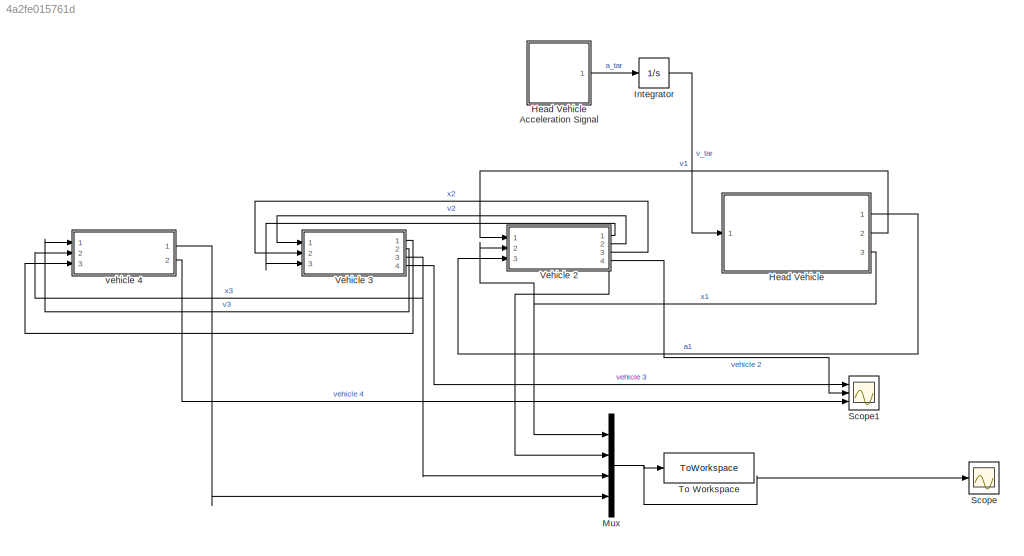
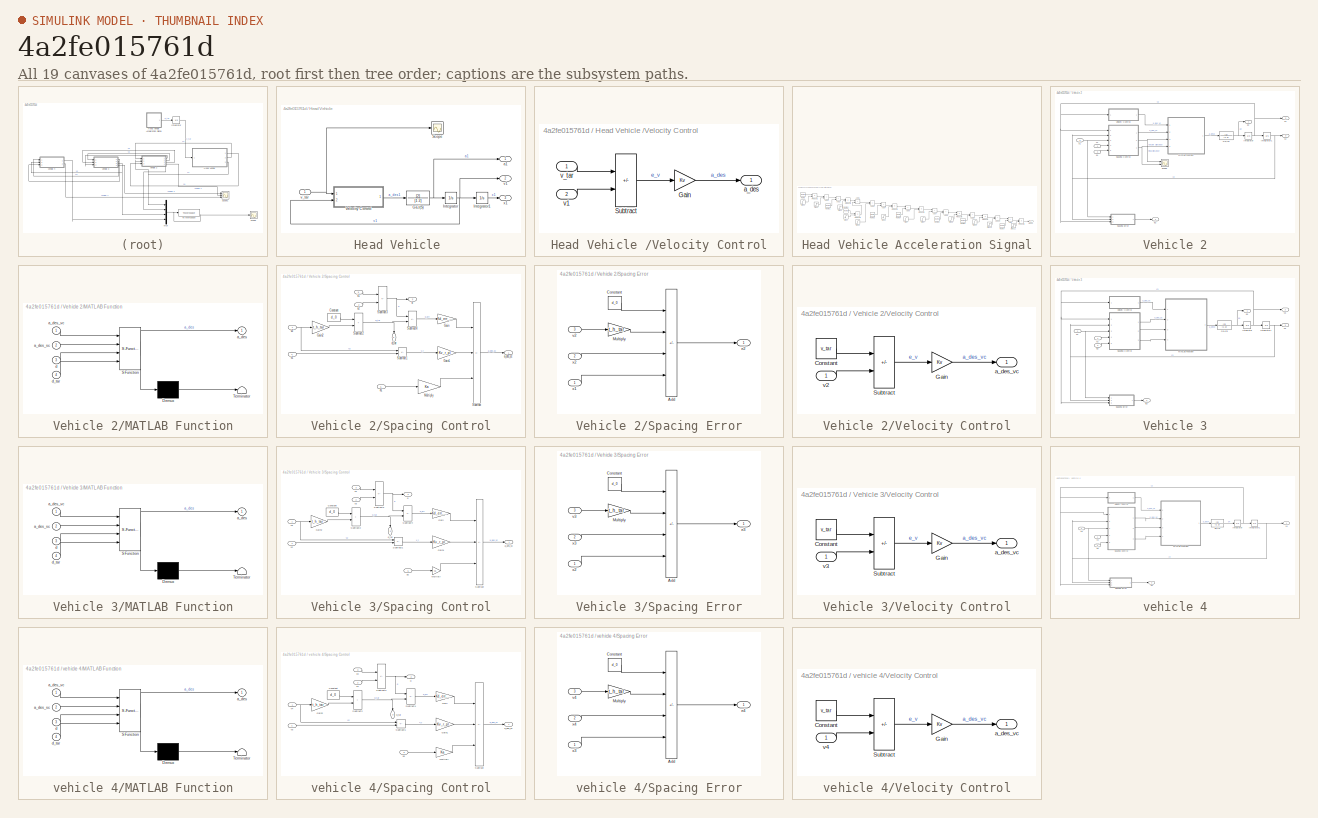
[diagram: thumbnail index - all 19 canvases of the model, root first then tree order]
MODEL slx_4a2fe015761d
KIND model
CONFIG AbsTol = auto
CONFIG EnableMultiTasking = off
CONFIG FixedStep = auto
CONFIG MaxStep = auto
CONFIG MinStep = auto
CONFIG RelTol = 1e-3
CONFIG SampleTimeConstraint = Unconstrained
CONFIG SolverName = VariableStepAuto
CONFIG StartTime = 0.0
CONFIG StopTime = 120
BLOCK [SubSystem] Head Vehicle 
  Ports = [1, 3]
  RequestExecContextInheritance = off
BLOCK [TransferFcn] Head Vehicle /Ga,l(S)
  Denominator = [1 2]
  Numerator = [2]
BLOCK [Integrator] Head Vehicle /Integrator
  InitialCondition = v_initial(1)
  Ports = [1, 1]
BLOCK [Integrator] Head Vehicle /Integrator1
  InitialCondition = x_initial(1)
  Ports = [1, 1]
BLOCK [Scope] Head Vehicle /Scope
  Floating = off
  NumInputPorts = 1
  Ports = [1]
  ScopeSpecificationString = Simulink.scopes.TimeScopeBlockCfg('CurrentConfiguration', extmgr.ConfigurationSet(extmgr.Configuration('Core','General UI',true),extmgr.Configuration('Core','Source UI',true),extmgr.Configuration('Sources','WiredSimulink',true,'DataLoggingVariableName','ScopeData1'),extmgr.Configuration('Visuals','Time Domain',true,'SerializedDisplays',{struct('MinYLimReal','-7.875','MaxYLimReal','0.875','YLabelRe...<+1352ch>
BLOCK [SubSystem] Head Vehicle /Velocity Control
  Ports = [2, 1]
  RequestExecContextInheritance = off
BLOCK [Gain] Head Vehicle /Velocity Control/Gain
  Gain = Kv
BLOCK [Sum] Head Vehicle /Velocity Control/Subtract
  IconShape = rectangular
  Inputs = +-
  Ports = [2, 1]
BLOCK [Outport] Head Vehicle /Velocity Control/a_des
BLOCK [Inport] Head Vehicle /Velocity Control/v1
  Port = 2
BLOCK [Inport] Head Vehicle /Velocity Control/v_tar
BLOCK [Outport] Head Vehicle /a1
BLOCK [Outport] Head Vehicle /v1
  Port = 2
BLOCK [Inport] Head Vehicle /v_tar
BLOCK [Outport] Head Vehicle /x1
  Port = 3
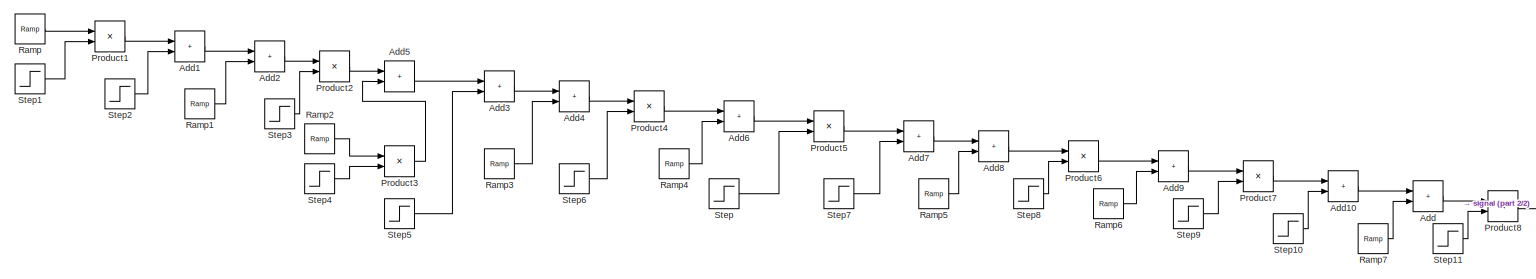
[diagram: Head Vehicle Acceleration Signal - part 1/2, most of the canvas]
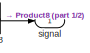
[diagram: Head Vehicle Acceleration Signal - part 2/2, bottom right region]
BLOCK [SubSystem] Head Vehicle Acceleration Signal
  Ports = [0, 1]
  RequestExecContextInheritance = off
BLOCK [Sum] Head Vehicle Acceleration Signal/Add
  IconShape = rectangular
  Ports = [2, 1]
BLOCK [Sum] Head Vehicle Acceleration Signal/Add1
  IconShape = rectangular
  Ports = [2, 1]
BLOCK [Sum] Head Vehicle Acceleration Signal/Add10
  IconShape = rectangular
  Ports = [2, 1]
BLOCK [Sum] Head Vehicle Acceleration Signal/Add2
  IconShape = rectangular
  Ports = [2, 1]
BLOCK [Sum] Head Vehicle Acceleration Signal/Add3
  IconShape = rectangular
  Ports = [2, 1]
BLOCK [Sum] Head Vehicle Acceleration Signal/Add4
  IconShape = rectangular
  Ports = [2, 1]
BLOCK [Sum] Head Vehicle Acceleration Signal/Add5
  IconShape = rectangular
  Ports = [2, 1]
BLOCK [Sum] Head Vehicle Acceleration Signal/Add6
  IconShape = rectangular
  Ports = [2, 1]
BLOCK [Sum] Head Vehicle Acceleration Signal/Add7
  IconShape = rectangular
  Ports = [2, 1]
BLOCK [Sum] Head Vehicle Acceleration Signal/Add8
  IconShape = rectangular
  Ports = [2, 1]
BLOCK [Sum] Head Vehicle Acceleration Signal/Add9
  IconShape = rectangular
  Ports = [2, 1]
BLOCK [Product] Head Vehicle Acceleration Signal/Product1
  Ports = [2, 1]
BLOCK [Product] Head Vehicle Acceleration Signal/Product2
  Ports = [2, 1]
BLOCK [Product] Head Vehicle Acceleration Signal/Product3
  Ports = [2, 1]
BLOCK [Product] Head Vehicle Acceleration Signal/Product4
  Ports = [2, 1]
BLOCK [Product] Head Vehicle Acceleration Signal/Product5
  Ports = [2, 1]
BLOCK [Product] Head Vehicle Acceleration Signal/Product6
  Ports = [2, 1]
BLOCK [Product] Head Vehicle Acceleration Signal/Product7
  Ports = [2, 1]
BLOCK [Product] Head Vehicle Acceleration Signal/Product8
  Ports = [2, 1]
BLOCK [Reference] Head Vehicle Acceleration Signal/Ramp  REF=simulink/Sources/Ramp
  Ports = [0, 1]
  SourceBlock = simulink/Sources/Ramp
  SourceProductBaseCode = SL
  SourceType = Ramp
BLOCK [Reference] Head Vehicle Acceleration Signal/Ramp1  REF=simulink/Sources/Ramp
  Ports = [0, 1]
  SourceBlock = simulink/Sources/Ramp
  SourceProductBaseCode = SL
  SourceType = Ramp
BLOCK [Reference] Head Vehicle Acceleration Signal/Ramp2  REF=simulink/Sources/Ramp
  Ports = [0, 1]
  SourceBlock = simulink/Sources/Ramp
  SourceProductBaseCode = SL
  SourceType = Ramp
BLOCK [Reference] Head Vehicle Acceleration Signal/Ramp3  REF=simulink/Sources/Ramp
  Ports = [0, 1]
  SourceBlock = simulink/Sources/Ramp
  SourceProductBaseCode = SL
  SourceType = Ramp
BLOCK [Reference] Head Vehicle Acceleration Signal/Ramp4  REF=simulink/Sources/Ramp
  Ports = [0, 1]
  SourceBlock = simulink/Sources/Ramp
  SourceProductBaseCode = SL
  SourceType = Ramp
BLOCK [Reference] Head Vehicle Acceleration Signal/Ramp5  REF=simulink/Sources/Ramp
  Ports = [0, 1]
  SourceBlock = simulink/Sources/Ramp
  SourceProductBaseCode = SL
  SourceType = Ramp
BLOCK [Reference] Head Vehicle Acceleration Signal/Ramp6  REF=simulink/Sources/Ramp
  Ports = [0, 1]
  SourceBlock = simulink/Sources/Ramp
  SourceProductBaseCode = SL
  SourceType = Ramp
BLOCK [Reference] Head Vehicle Acceleration Signal/Ramp7  REF=simulink/Sources/Ramp
  Ports = [0, 1]
  SourceBlock = simulink/Sources/Ramp
  SourceProductBaseCode = SL
  SourceType = Ramp
BLOCK [Step] Head Vehicle Acceleration Signal/Step
  After = 0
  Before = 1
  SampleTime = 0
  Time = 70.5
BLOCK [Step] Head Vehicle Acceleration Signal/Step1
  After = 0
  Before = 1
  SampleTime = 0.1
  Time = 10.5
BLOCK [Step] Head Vehicle Acceleration Signal/Step10
  After = 2
  SampleTime = 0
  Time = 100.5
BLOCK [Step] Head Vehicle Acceleration Signal/Step11
  After = 0
  Before = 1
  SampleTime = 0
  Time = 104
BLOCK [Step] Head Vehicle Acceleration Signal/Step2
  After = -2
  SampleTime = 0
  Time = 10.5
BLOCK [Step] Head Vehicle Acceleration Signal/Step3
  After = 0
  Before = 1
  SampleTime = 0
  Time = 14
BLOCK [Step] Head Vehicle Acceleration Signal/Step4
  After = 0
  Before = 1
  SampleTime = 0
  Time = 40.5
BLOCK [Step] Head Vehicle Acceleration Signal/Step5
  After = 2
  SampleTime = 0
  Time = 40.5
BLOCK [Step] Head Vehicle Acceleration Signal/Step6
  After = 0
  Before = 1
  SampleTime = 0
  Time = 44
BLOCK [Step] Head Vehicle Acceleration Signal/Step7
  After = -2
  SampleTime = 0
  Time = 70.5
BLOCK [Step] Head Vehicle Acceleration Signal/Step8
  After = 0
  Before = 1
  SampleTime = 0
  Time = 74
BLOCK [Step] Head Vehicle Acceleration Signal/Step9
  After = 0
  Before = 1
  SampleTime = 0
  Time = 100.5
BLOCK [Outport] Head Vehicle Acceleration Signal/signal
BLOCK [Integrator] Integrator
  InitialCondition = v_initial(1)
  Ports = [1, 1]
BLOCK [Mux] Mux
  DisplayOption = bar
  Ports = [4, 1]
BLOCK [Scope] Scope
  Floating = off
  NumInputPorts = 1
  Ports = [1]
  ScopeSpecificationString = Simulink.scopes.TimeScopeBlockCfg('CurrentConfiguration', extmgr.ConfigurationSet(extmgr.Configuration('Core','General UI',true),extmgr.Configuration('Core','Source UI',true),extmgr.Configuration('Sources','WiredSimulink',true,'DataLoggingVariableName','ScopeData1'),extmgr.Configuration('Visuals','Time Domain',true,'SerializedDisplays',{struct('MinYLimReal','-416.25','MaxYLimReal','3746.25','YLabe...<+1415ch>
BLOCK [Scope] Scope1
  Floating = off
  NumInputPorts = 3
  Ports = [3]
  ScopeSpecificationString = Simulink.scopes.TimeScopeBlockCfg('CurrentConfiguration', extmgr.ConfigurationSet(extmgr.Configuration('Core','General UI',true),extmgr.Configuration('Core','Source UI',true),extmgr.Configuration('Sources','WiredSimulink',true,'DataLoggingVariableName','ScopeData1'),extmgr.Configuration('Visuals','Time Domain',true,'SerializedDisplays',{struct('MinYLimReal','0.20051','MaxYLimReal','0.5639','YLabel...<+1507ch>
BLOCK [ToWorkspace] To Workspace
  FixptAsFi = on
  MaxDataPoints = inf
  Ports = [1]
  SampleTime = -1
  VariableName = x_plus
BLOCK [SubSystem] Vehicle 2
  Ports = [3, 4]
  RequestExecContextInheritance = off
BLOCK [TransferFcn] Vehicle 2/Ga,l(S)
  Denominator = [1 2]
  Numerator = [2]
BLOCK [Integrator] Vehicle 2/Integrator
  InitialCondition = v_initial(2)
  Ports = [1, 1]
BLOCK [Integrator] Vehicle 2/Integrator1
  InitialCondition = x_initial(2)
  Ports = [1, 1]
BLOCK [SubSystem] Vehicle 2/MATLAB Function
  ErrorFcn = Stateflow.Translate.translate
  PermitHierarchicalResolution = ExplicitOnly
  Ports = [4, 1]
  RequestExecContextInheritance = off
  SFBlockType = MATLAB Function
  TreatAsAtomicUnit = on
BLOCK [Demux] Vehicle 2/MATLAB Function/ Demux 
  Outputs = 1
  Ports = [1, 1]
BLOCK [S-Function] Vehicle 2/MATLAB Function/ SFunction 
  EnableBusSupport = on
  FunctionName = sf_sfun
  PortCounts = [4 2]
  Ports = [4, 2]
  SFcnIsStateOwnerBlock = off
  SFunctionDeploymentMode = off
  Tag = Stateflow S-Function 1
BLOCK [Terminator] Vehicle 2/MATLAB Function/ Terminator 
BLOCK [Outport] Vehicle 2/MATLAB Function/a_des
BLOCK [Inport] Vehicle 2/MATLAB Function/a_des_sc
  Port = 2
BLOCK [Inport] Vehicle 2/MATLAB Function/a_des_vc
BLOCK [Inport] Vehicle 2/MATLAB Function/d
  Port = 3
BLOCK [Inport] Vehicle 2/MATLAB Function/d_tar
  Port = 4
BLOCK [Scope] Vehicle 2/Scope
  Floating = off
  NumInputPorts = 2
  Ports = [2]
  ScopeSpecificationString = Simulink.scopes.TimeScopeBlockCfg('CurrentConfiguration', extmgr.ConfigurationSet(extmgr.Configuration('Core','General UI',true),extmgr.Configuration('Core','Source UI',true),extmgr.Configuration('Sources','WiredSimulink',true,'DataLoggingVariableName','ScopeData1'),extmgr.Configuration('Visuals','Time Domain',true,'SerializedDisplays',{struct('MinYLimReal','27.17608','MaxYLimReal','63.64472','YLa...<+1500ch>
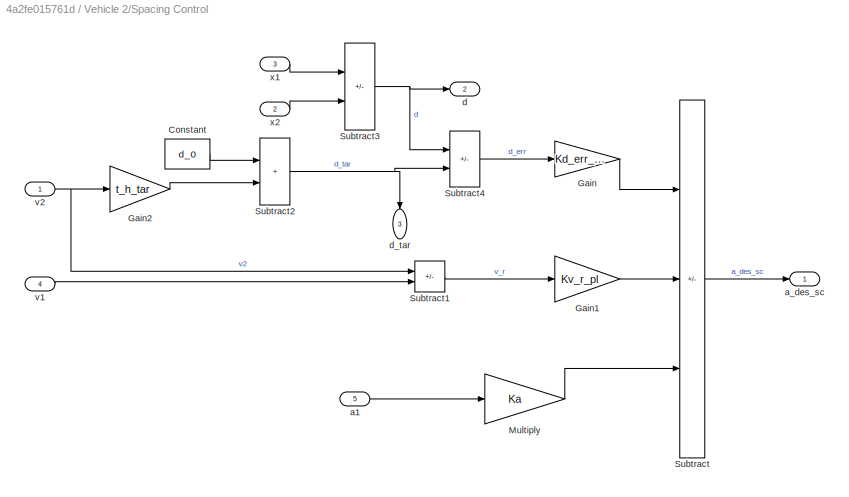
BLOCK [SubSystem] Vehicle 2/Spacing Control
  Ports = [5, 3]
  RequestExecContextInheritance = off
BLOCK [Constant] Vehicle 2/Spacing Control/Constant
  Value = d_0
BLOCK [Gain] Vehicle 2/Spacing Control/Gain
  Gain = Kd_err_pl
BLOCK [Gain] Vehicle 2/Spacing Control/Gain1
  Gain = Kv_r_pl
BLOCK [Gain] Vehicle 2/Spacing Control/Gain2
  Gain = t_h_tar
BLOCK [Gain] Vehicle 2/Spacing Control/Multiply
  Gain = Ka
BLOCK [Sum] Vehicle 2/Spacing Control/Subtract
  IconShape = rectangular
  Inputs = -++
  Ports = [3, 1]
BLOCK [Sum] Vehicle 2/Spacing Control/Subtract1
  IconShape = rectangular
  Inputs = -+
  Ports = [2, 1]
BLOCK [Sum] Vehicle 2/Spacing Control/Subtract2
  IconShape = rectangular
  Ports = [2, 1]
BLOCK [Sum] Vehicle 2/Spacing Control/Subtract3
  IconShape = rectangular
  Inputs = +-
  Ports = [2, 1]
BLOCK [Sum] Vehicle 2/Spacing Control/Subtract4
  IconShape = rectangular
  Inputs = -+
  Ports = [2, 1]
BLOCK [Inport] Vehicle 2/Spacing Control/a1
  Port = 5
BLOCK [Outport] Vehicle 2/Spacing Control/a_des_sc
BLOCK [Outport] Vehicle 2/Spacing Control/d
  Port = 2
BLOCK [Outport] Vehicle 2/Spacing Control/d_tar
  NameLocation = left
  Port = 3
BLOCK [Inport] Vehicle 2/Spacing Control/v1
  Port = 4
BLOCK [Inport] Vehicle 2/Spacing Control/v2
BLOCK [Inport] Vehicle 2/Spacing Control/x1
  Port = 3
BLOCK [Inport] Vehicle 2/Spacing Control/x2
  Port = 2
BLOCK [SubSystem] Vehicle 2/Spacing Error
  Ports = [3, 1]
  RequestExecContextInheritance = off
BLOCK [Sum] Vehicle 2/Spacing Error/Add
  IconShape = rectangular
  Inputs = +++-
  Ports = [4, 1]
BLOCK [Constant] Vehicle 2/Spacing Error/Constant
  Value = d_0
BLOCK [Gain] Vehicle 2/Spacing Error/Multiply
  Gain = t_h_tar
BLOCK [Outport] Vehicle 2/Spacing Error/e2
BLOCK [Inport] Vehicle 2/Spacing Error/v2
  Port = 3
BLOCK [Inport] Vehicle 2/Spacing Error/x1
BLOCK [Inport] Vehicle 2/Spacing Error/x2
  Port = 2
BLOCK [SubSystem] Vehicle 2/Velocity Control
  Ports = [1, 1]
  RequestExecContextInheritance = off
BLOCK [Constant] Vehicle 2/Velocity Control/Constant
  Value = v_tar
BLOCK [Gain] Vehicle 2/Velocity Control/Gain
  Gain = Kv
BLOCK [Sum] Vehicle 2/Velocity Control/Subtract
  IconShape = rectangular
  Inputs = +-
  Ports = [2, 1]
BLOCK [Outport] Vehicle 2/Velocity Control/a_des_vc
BLOCK [Inport] Vehicle 2/Velocity Control/v2
BLOCK [Inport] Vehicle 2/a1
  Port = 3
BLOCK [Outport] Vehicle 2/a2
BLOCK [Outport] Vehicle 2/e2
  Port = 4
BLOCK [Inport] Vehicle 2/v1
BLOCK [Outport] Vehicle 2/v2
  Port = 2
BLOCK [Inport] Vehicle 2/x1
  Port = 2
BLOCK [Outport] Vehicle 2/x2
  Port = 3
BLOCK [SubSystem] Vehicle 3
  Ports = [3, 4]
  RequestExecContextInheritance = off
BLOCK [TransferFcn] Vehicle 3/Ga,l(S)
  Denominator = [1 2]
  Numerator = [2]
BLOCK [Integrator] Vehicle 3/Integrator
  InitialCondition = v_initial(3)
  Ports = [1, 1]
BLOCK [Integrator] Vehicle 3/Integrator1
  InitialCondition = x_initial(3)
  Ports = [1, 1]
BLOCK [SubSystem] Vehicle 3/MATLAB Function
  ErrorFcn = Stateflow.Translate.translate
  PermitHierarchicalResolution = ExplicitOnly
  Ports = [4, 1]
  RequestExecContextInheritance = off
  SFBlockType = MATLAB Function
  TreatAsAtomicUnit = on
BLOCK [Demux] Vehicle 3/MATLAB Function/ Demux 
  Outputs = 1
  Ports = [1, 1]
BLOCK [S-Function] Vehicle 3/MATLAB Function/ SFunction 
  EnableBusSupport = on
  FunctionName = sf_sfun
  PortCounts = [4 2]
  Ports = [4, 2]
  SFcnIsStateOwnerBlock = off
  SFunctionDeploymentMode = off
  Tag = Stateflow S-Function 2
BLOCK [Terminator] Vehicle 3/MATLAB Function/ Terminator 
BLOCK [Outport] Vehicle 3/MATLAB Function/a_des
BLOCK [Inport] Vehicle 3/MATLAB Function/a_des_sc
  Port = 2
BLOCK [Inport] Vehicle 3/MATLAB Function/a_des_vc
BLOCK [Inport] Vehicle 3/MATLAB Function/d
  Port = 3
BLOCK [Inport] Vehicle 3/MATLAB Function/d_tar
  Port = 4
BLOCK [SubSystem] Vehicle 3/Spacing Control
  Ports = [5, 3]
  RequestExecContextInheritance = off
BLOCK [Constant] Vehicle 3/Spacing Control/Constant
  Value = d_0
BLOCK [Gain] Vehicle 3/Spacing Control/Gain
  Gain = Kd_err_pl
BLOCK [Gain] Vehicle 3/Spacing Control/Gain1
  Gain = Kv_r_pl
BLOCK [Gain] Vehicle 3/Spacing Control/Gain2
  Gain = t_h_tar
BLOCK [Gain] Vehicle 3/Spacing Control/Multiply
  Gain = Ka
BLOCK [Sum] Vehicle 3/Spacing Control/Subtract
  IconShape = rectangular
  Inputs = -++
  Ports = [3, 1]
BLOCK [Sum] Vehicle 3/Spacing Control/Subtract1
  IconShape = rectangular
  Inputs = -+
  Ports = [2, 1]
BLOCK [Sum] Vehicle 3/Spacing Control/Subtract2
  IconShape = rectangular
  Ports = [2, 1]
BLOCK [Sum] Vehicle 3/Spacing Control/Subtract3
  IconShape = rectangular
  Inputs = +-
  Ports = [2, 1]
BLOCK [Sum] Vehicle 3/Spacing Control/Subtract4
  IconShape = rectangular
  Inputs = -+
  Ports = [2, 1]
BLOCK [Inport] Vehicle 3/Spacing Control/a2
  Port = 5
BLOCK [Outport] Vehicle 3/Spacing Control/a_des_sc
BLOCK [Outport] Vehicle 3/Spacing Control/d
  Port = 2
BLOCK [Outport] Vehicle 3/Spacing Control/d_tar
  NameLocation = left
  Port = 3
BLOCK [Inport] Vehicle 3/Spacing Control/v2
  Port = 4
BLOCK [Inport] Vehicle 3/Spacing Control/v3
BLOCK [Inport] Vehicle 3/Spacing Control/x2
  Port = 3
BLOCK [Inport] Vehicle 3/Spacing Control/x3
  Port = 2
BLOCK [SubSystem] Vehicle 3/Spacing Error
  Ports = [3, 1]
  RequestExecContextInheritance = off
BLOCK [Sum] Vehicle 3/Spacing Error/Add
  IconShape = rectangular
  Inputs = +++-
  Ports = [4, 1]
BLOCK [Constant] Vehicle 3/Spacing Error/Constant
  Value = d_0
BLOCK [Gain] Vehicle 3/Spacing Error/Multiply
  Gain = t_h_tar
BLOCK [Outport] Vehicle 3/Spacing Error/e3
BLOCK [Inport] Vehicle 3/Spacing Error/v3
  Port = 3
BLOCK [Inport] Vehicle 3/Spacing Error/x2
BLOCK [Inport] Vehicle 3/Spacing Error/x3
  Port = 2
BLOCK [SubSystem] Vehicle 3/Velocity Control
  Ports = [1, 1]
  RequestExecContextInheritance = off
BLOCK [Constant] Vehicle 3/Velocity Control/Constant
  Value = v_tar
BLOCK [Gain] Vehicle 3/Velocity Control/Gain
  Gain = Kv
BLOCK [Sum] Vehicle 3/Velocity Control/Subtract
  IconShape = rectangular
  Inputs = +-
  Ports = [2, 1]
BLOCK [Outport] Vehicle 3/Velocity Control/a_des_vc
BLOCK [Inport] Vehicle 3/Velocity Control/v3
BLOCK [Inport] Vehicle 3/a2
  Port = 3
BLOCK [Outport] Vehicle 3/a3
BLOCK [Outport] Vehicle 3/e3
  Port = 4
BLOCK [Inport] Vehicle 3/v2
BLOCK [Outport] Vehicle 3/v3
  Port = 2
BLOCK [Inport] Vehicle 3/x2
  Port = 2
BLOCK [Outport] Vehicle 3/x3
  Port = 3
BLOCK [SubSystem] vehicle 4
  Ports = [3, 2]
  RequestExecContextInheritance = off
BLOCK [TransferFcn] vehicle 4/Ga,l(S)
  Denominator = [1 2]
  Numerator = [2]
BLOCK [Integrator] vehicle 4/Integrator
  InitialCondition = v_initial(4)
  Ports = [1, 1]
BLOCK [Integrator] vehicle 4/Integrator1
  InitialCondition = x_initial(4)
  Ports = [1, 1]
BLOCK [SubSystem] vehicle 4/MATLAB Function
  ErrorFcn = Stateflow.Translate.translate
  PermitHierarchicalResolution = ExplicitOnly
  Ports = [4, 1]
  RequestExecContextInheritance = off
  SFBlockType = MATLAB Function
  TreatAsAtomicUnit = on
BLOCK [Demux] vehicle 4/MATLAB Function/ Demux 
  Outputs = 1
  Ports = [1, 1]
BLOCK [S-Function] vehicle 4/MATLAB Function/ SFunction 
  EnableBusSupport = on
  FunctionName = sf_sfun
  PortCounts = [4 2]
  Ports = [4, 2]
  SFcnIsStateOwnerBlock = off
  SFunctionDeploymentMode = off
  Tag = Stateflow S-Function 3
BLOCK [Terminator] vehicle 4/MATLAB Function/ Terminator 
BLOCK [Outport] vehicle 4/MATLAB Function/a_des
BLOCK [Inport] vehicle 4/MATLAB Function/a_des_sc
  Port = 2
BLOCK [Inport] vehicle 4/MATLAB Function/a_des_vc
BLOCK [Inport] vehicle 4/MATLAB Function/d
  Port = 3
BLOCK [Inport] vehicle 4/MATLAB Function/d_tar
  Port = 4
BLOCK [SubSystem] vehicle 4/Spacing Control
  Ports = [5, 3]
  RequestExecContextInheritance = off
BLOCK [Constant] vehicle 4/Spacing Control/Constant
  Value = d_0
BLOCK [Gain] vehicle 4/Spacing Control/Gain
  Gain = Kd_err_pl
BLOCK [Gain] vehicle 4/Spacing Control/Gain1
  Gain = Kv_r_pl
BLOCK [Gain] vehicle 4/Spacing Control/Gain2
  Gain = t_h_tar
BLOCK [Gain] vehicle 4/Spacing Control/Multiply
  Gain = Ka
BLOCK [Sum] vehicle 4/Spacing Control/Subtract
  IconShape = rectangular
  Inputs = -++
  Ports = [3, 1]
BLOCK [Sum] vehicle 4/Spacing Control/Subtract1
  IconShape = rectangular
  Inputs = -+
  Ports = [2, 1]
BLOCK [Sum] vehicle 4/Spacing Control/Subtract2
  IconShape = rectangular
  Ports = [2, 1]
BLOCK [Sum] vehicle 4/Spacing Control/Subtract3
  IconShape = rectangular
  Inputs = +-
  Ports = [2, 1]
BLOCK [Sum] vehicle 4/Spacing Control/Subtract4
  IconShape = rectangular
  Inputs = -+
  Ports = [2, 1]
BLOCK [Inport] vehicle 4/Spacing Control/a3
  Port = 5
BLOCK [Outport] vehicle 4/Spacing Control/a_des_sc
BLOCK [Outport] vehicle 4/Spacing Control/d
  Port = 2
BLOCK [Outport] vehicle 4/Spacing Control/d_tar
  NameLocation = left
  Port = 3
BLOCK [Inport] vehicle 4/Spacing Control/v3
  Port = 4
BLOCK [Inport] vehicle 4/Spacing Control/v4
BLOCK [Inport] vehicle 4/Spacing Control/x3
  Port = 3
BLOCK [Inport] vehicle 4/Spacing Control/x4
  Port = 2
BLOCK [SubSystem] vehicle 4/Spacing Error
  Ports = [3, 1]
  RequestExecContextInheritance = off
BLOCK [Sum] vehicle 4/Spacing Error/Add
  IconShape = rectangular
  Inputs = +++-
  Ports = [4, 1]
BLOCK [Constant] vehicle 4/Spacing Error/Constant
  Value = d_0
BLOCK [Gain] vehicle 4/Spacing Error/Multiply
  Gain = t_h_tar
BLOCK [Outport] vehicle 4/Spacing Error/e4
BLOCK [Inport] vehicle 4/Spacing Error/v4
  Port = 3
BLOCK [Inport] vehicle 4/Spacing Error/x3
BLOCK [Inport] vehicle 4/Spacing Error/x4
  Port = 2
BLOCK [SubSystem] vehicle 4/Velocity Control
  Ports = [1, 1]
  RequestExecContextInheritance = off
BLOCK [Constant] vehicle 4/Velocity Control/Constant
  Value = v_tar
BLOCK [Gain] vehicle 4/Velocity Control/Gain
  Gain = Kv
BLOCK [Sum] vehicle 4/Velocity Control/Subtract
  IconShape = rectangular
  Inputs = +-
  Ports = [2, 1]
BLOCK [Outport] vehicle 4/Velocity Control/a_des_vc
BLOCK [Inport] vehicle 4/Velocity Control/v4
BLOCK [Inport] vehicle 4/a3
  Port = 3
BLOCK [Outport] vehicle 4/e4
  Port = 2
BLOCK [Inport] vehicle 4/v3
BLOCK [Inport] vehicle 4/x3
  Port = 2
BLOCK [Outport] vehicle 4/x4
NET Head Vehicle /Ga,l(S):1 -> Head Vehicle /Integrator:1, Head Vehicle /a1:1
LINE Head Vehicle /Integrator1:1 -> Head Vehicle /x1:1
NET Head Vehicle /Integrator:1 -> Head Vehicle /Integrator1:1, Head Vehicle /Velocity Control:2, Head Vehicle /v1:1
LINE Head Vehicle /Velocity Control/Gain:1 -> Head Vehicle /Velocity Control/a_des:1
LINE Head Vehicle /Velocity Control/Subtract:1 -> Head Vehicle /Velocity Control/Gain:1
LINE Head Vehicle /Velocity Control/v1:1 -> Head Vehicle /Velocity Control/Subtract:2
LINE Head Vehicle /Velocity Control/v_tar:1 -> Head Vehicle /Velocity Control/Subtract:1
LINE Head Vehicle /Velocity Control:1 -> Head Vehicle /Ga,l(S):1
NET Head Vehicle /v_tar:1 -> Head Vehicle /Scope:1, Head Vehicle /Velocity Control:1
LINE Head Vehicle :1 -> Vehicle 2:3
LINE Head Vehicle :2 -> Vehicle 2:1
NET Head Vehicle :3 -> Mux:1, Vehicle 2:2
LINE Head Vehicle Acceleration Signal/Add10:1 -> Head Vehicle Acceleration Signal/Add:1
LINE Head Vehicle Acceleration Signal/Add1:1 -> Head Vehicle Acceleration Signal/Add2:1
LINE Head Vehicle Acceleration Signal/Add2:1 -> Head Vehicle Acceleration Signal/Product2:1
LINE Head Vehicle Acceleration Signal/Add3:1 -> Head Vehicle Acceleration Signal/Add4:1
LINE Head Vehicle Acceleration Signal/Add4:1 -> Head Vehicle Acceleration Signal/Product4:1
LINE Head Vehicle Acceleration Signal/Add5:1 -> Head Vehicle Acceleration Signal/Add3:1
LINE Head Vehicle Acceleration Signal/Add6:1 -> Head Vehicle Acceleration Signal/Product5:1
LINE Head Vehicle Acceleration Signal/Add7:1 -> Head Vehicle Acceleration Signal/Add8:1
LINE Head Vehicle Acceleration Signal/Add8:1 -> Head Vehicle Acceleration Signal/Product6:1
LINE Head Vehicle Acceleration Signal/Add9:1 -> Head Vehicle Acceleration Signal/Product7:1
LINE Head Vehicle Acceleration Signal/Add:1 -> Head Vehicle Acceleration Signal/Product8:1
LINE Head Vehicle Acceleration Signal/Product1:1 -> Head Vehicle Acceleration Signal/Add1:1
LINE Head Vehicle Acceleration Signal/Product2:1 -> Head Vehicle Acceleration Signal/Add5:1
LINE Head Vehicle Acceleration Signal/Product3:1 -> Head Vehicle Acceleration Signal/Add5:2
LINE Head Vehicle Acceleration Signal/Product4:1 -> Head Vehicle Acceleration Signal/Add6:1
LINE Head Vehicle Acceleration Signal/Product5:1 -> Head Vehicle Acceleration Signal/Add7:1
LINE Head Vehicle Acceleration Signal/Product6:1 -> Head Vehicle Acceleration Signal/Add9:1
LINE Head Vehicle Acceleration Signal/Product7:1 -> Head Vehicle Acceleration Signal/Add10:1
LINE Head Vehicle Acceleration Signal/Product8:1 -> Head Vehicle Acceleration Signal/signal:1
LINE Head Vehicle Acceleration Signal/Ramp1:1 -> Head Vehicle Acceleration Signal/Add2:2
LINE Head Vehicle Acceleration Signal/Ramp2:1 -> Head Vehicle Acceleration Signal/Product3:1
LINE Head Vehicle Acceleration Signal/Ramp3:1 -> Head Vehicle Acceleration Signal/Add4:2
LINE Head Vehicle Acceleration Signal/Ramp4:1 -> Head Vehicle Acceleration Signal/Add6:2
LINE Head Vehicle Acceleration Signal/Ramp5:1 -> Head Vehicle Acceleration Signal/Add8:2
LINE Head Vehicle Acceleration Signal/Ramp6:1 -> Head Vehicle Acceleration Signal/Add9:2
LINE Head Vehicle Acceleration Signal/Ramp7:1 -> Head Vehicle Acceleration Signal/Add:2
LINE Head Vehicle Acceleration Signal/Ramp:1 -> Head Vehicle Acceleration Signal/Product1:1
LINE Head Vehicle Acceleration Signal/Step10:1 -> Head Vehicle Acceleration Signal/Add10:2
LINE Head Vehicle Acceleration Signal/Step11:1 -> Head Vehicle Acceleration Signal/Product8:2
LINE Head Vehicle Acceleration Signal/Step1:1 -> Head Vehicle Acceleration Signal/Product1:2
LINE Head Vehicle Acceleration Signal/Step2:1 -> Head Vehicle Acceleration Signal/Add1:2
LINE Head Vehicle Acceleration Signal/Step3:1 -> Head Vehicle Acceleration Signal/Product2:2
LINE Head Vehicle Acceleration Signal/Step4:1 -> Head Vehicle Acceleration Signal/Product3:2
LINE Head Vehicle Acceleration Signal/Step5:1 -> Head Vehicle Acceleration Signal/Add3:2
LINE Head Vehicle Acceleration Signal/Step6:1 -> Head Vehicle Acceleration Signal/Product4:2
LINE Head Vehicle Acceleration Signal/Step7:1 -> Head Vehicle Acceleration Signal/Add7:2
LINE Head Vehicle Acceleration Signal/Step8:1 -> Head Vehicle Acceleration Signal/Product6:2
LINE Head Vehicle Acceleration Signal/Step9:1 -> Head Vehicle Acceleration Signal/Product7:2
LINE Head Vehicle Acceleration Signal/Step:1 -> Head Vehicle Acceleration Signal/Product5:2
LINE Head Vehicle Acceleration Signal:1 -> Integrator:1
LINE Integrator:1 -> Head Vehicle :1
NET Mux:1 -> Scope:1, To Workspace:1
NET Vehicle 2/Ga,l(S):1 -> Vehicle 2/Integrator:1, Vehicle 2/a2:1
NET Vehicle 2/Integrator1:1 -> Vehicle 2/Spacing Control:2, Vehicle 2/Spacing Error:2, Vehicle 2/x2:1
NET Vehicle 2/Integrator:1 -> Vehicle 2/Integrator1:1, Vehicle 2/Spacing Control:1, Vehicle 2/Spacing Error:3, Vehicle 2/Velocity Control:1, Vehicle 2/v2:1
LINE Vehicle 2/MATLAB Function:1 -> Vehicle 2/Ga,l(S):1
LINE Vehicle 2/Spacing Control/Constant:1 -> Vehicle 2/Spacing Control/Subtract2:1
LINE Vehicle 2/Spacing Control/Gain1:1 -> Vehicle 2/Spacing Control/Subtract:2
LINE Vehicle 2/Spacing Control/Gain2:1 -> Vehicle 2/Spacing Control/Subtract2:2
LINE Vehicle 2/Spacing Control/Gain:1 -> Vehicle 2/Spacing Control/Subtract:1
LINE Vehicle 2/Spacing Control/Multiply:1 -> Vehicle 2/Spacing Control/Subtract:3
LINE Vehicle 2/Spacing Control/Subtract1:1 -> Vehicle 2/Spacing Control/Gain1:1
NET Vehicle 2/Spacing Control/Subtract2:1 -> Vehicle 2/Spacing Control/Subtract4:2, Vehicle 2/Spacing Control/d_tar:1
NET Vehicle 2/Spacing Control/Subtract3:1 -> Vehicle 2/Spacing Control/Subtract4:1, Vehicle 2/Spacing Control/d:1
LINE Vehicle 2/Spacing Control/Subtract4:1 -> Vehicle 2/Spacing Control/Gain:1
LINE Vehicle 2/Spacing Control/Subtract:1 -> Vehicle 2/Spacing Control/a_des_sc:1
LINE Vehicle 2/Spacing Control/a1:1 -> Vehicle 2/Spacing Control/Multiply:1
LINE Vehicle 2/Spacing Control/v1:1 -> Vehicle 2/Spacing Control/Subtract1:2
NET Vehicle 2/Spacing Control/v2:1 -> Vehicle 2/Spacing Control/Gain2:1, Vehicle 2/Spacing Control/Subtract1:1
LINE Vehicle 2/Spacing Control/x1:1 -> Vehicle 2/Spacing Control/Subtract3:1
LINE Vehicle 2/Spacing Control/x2:1 -> Vehicle 2/Spacing Control/Subtract3:2
LINE Vehicle 2/Spacing Control:1 -> Vehicle 2/MATLAB Function:2
NET Vehicle 2/Spacing Control:2 -> Vehicle 2/MATLAB Function:3, Vehicle 2/Scope:1
NET Vehicle 2/Spacing Control:3 -> Vehicle 2/MATLAB Function:4, Vehicle 2/Scope:2
LINE Vehicle 2/Spacing Error/Add:1 -> Vehicle 2/Spacing Error/e2:1
LINE Vehicle 2/Spacing Error/Constant:1 -> Vehicle 2/Spacing Error/Add:1
LINE Vehicle 2/Spacing Error/Multiply:1 -> Vehicle 2/Spacing Error/Add:2
LINE Vehicle 2/Spacing Error/v2:1 -> Vehicle 2/Spacing Error/Multiply:1
LINE Vehicle 2/Spacing Error/x1:1 -> Vehicle 2/Spacing Error/Add:4
LINE Vehicle 2/Spacing Error/x2:1 -> Vehicle 2/Spacing Error/Add:3
LINE Vehicle 2/Spacing Error:1 -> Vehicle 2/e2:1
LINE Vehicle 2/Velocity Control/Constant:1 -> Vehicle 2/Velocity Control/Subtract:1
LINE Vehicle 2/Velocity Control/Gain:1 -> Vehicle 2/Velocity Control/a_des_vc:1
LINE Vehicle 2/Velocity Control/Subtract:1 -> Vehicle 2/Velocity Control/Gain:1
LINE Vehicle 2/Velocity Control/v2:1 -> Vehicle 2/Velocity Control/Subtract:2
LINE Vehicle 2/Velocity Control:1 -> Vehicle 2/MATLAB Function:1
LINE Vehicle 2/a1:1 -> Vehicle 2/Spacing Control:5
LINE Vehicle 2/v1:1 -> Vehicle 2/Spacing Control:4
NET Vehicle 2/x1:1 -> Vehicle 2/Spacing Control:3, Vehicle 2/Spacing Error:1
LINE Vehicle 2:1 -> Vehicle 3:3
LINE Vehicle 2:2 -> Vehicle 3:1
NET Vehicle 2:3 -> Mux:2, Vehicle 3:2
LINE Vehicle 2:4 -> Scope1:1
NET Vehicle 3/Ga,l(S):1 -> Vehicle 3/Integrator:1, Vehicle 3/a3:1
NET Vehicle 3/Integrator1:1 -> Vehicle 3/Spacing Control:2, Vehicle 3/Spacing Error:2, Vehicle 3/x3:1
NET Vehicle 3/Integrator:1 -> Vehicle 3/Integrator1:1, Vehicle 3/Spacing Control:1, Vehicle 3/Spacing Error:3, Vehicle 3/Velocity Control:1, Vehicle 3/v3:1
LINE Vehicle 3/MATLAB Function:1 -> Vehicle 3/Ga,l(S):1
LINE Vehicle 3/Spacing Control/Constant:1 -> Vehicle 3/Spacing Control/Subtract2:1
LINE Vehicle 3/Spacing Control/Gain1:1 -> Vehicle 3/Spacing Control/Subtract:2
LINE Vehicle 3/Spacing Control/Gain2:1 -> Vehicle 3/Spacing Control/Subtract2:2
LINE Vehicle 3/Spacing Control/Gain:1 -> Vehicle 3/Spacing Control/Subtract:1
LINE Vehicle 3/Spacing Control/Multiply:1 -> Vehicle 3/Spacing Control/Subtract:3
LINE Vehicle 3/Spacing Control/Subtract1:1 -> Vehicle 3/Spacing Control/Gain1:1
NET Vehicle 3/Spacing Control/Subtract2:1 -> Vehicle 3/Spacing Control/Subtract4:2, Vehicle 3/Spacing Control/d_tar:1
NET Vehicle 3/Spacing Control/Subtract3:1 -> Vehicle 3/Spacing Control/Subtract4:1, Vehicle 3/Spacing Control/d:1
LINE Vehicle 3/Spacing Control/Subtract4:1 -> Vehicle 3/Spacing Control/Gain:1
LINE Vehicle 3/Spacing Control/Subtract:1 -> Vehicle 3/Spacing Control/a_des_sc:1
LINE Vehicle 3/Spacing Control/a2:1 -> Vehicle 3/Spacing Control/Multiply:1
LINE Vehicle 3/Spacing Control/v2:1 -> Vehicle 3/Spacing Control/Subtract1:2
NET Vehicle 3/Spacing Control/v3:1 -> Vehicle 3/Spacing Control/Gain2:1, Vehicle 3/Spacing Control/Subtract1:1
LINE Vehicle 3/Spacing Control/x2:1 -> Vehicle 3/Spacing Control/Subtract3:1
LINE Vehicle 3/Spacing Control/x3:1 -> Vehicle 3/Spacing Control/Subtract3:2
LINE Vehicle 3/Spacing Control:1 -> Vehicle 3/MATLAB Function:2
LINE Vehicle 3/Spacing Control:2 -> Vehicle 3/MATLAB Function:3
LINE Vehicle 3/Spacing Control:3 -> Vehicle 3/MATLAB Function:4
LINE Vehicle 3/Spacing Error/Add:1 -> Vehicle 3/Spacing Error/e3:1
LINE Vehicle 3/Spacing Error/Constant:1 -> Vehicle 3/Spacing Error/Add:1
LINE Vehicle 3/Spacing Error/Multiply:1 -> Vehicle 3/Spacing Error/Add:2
LINE Vehicle 3/Spacing Error/v3:1 -> Vehicle 3/Spacing Error/Multiply:1
LINE Vehicle 3/Spacing Error/x2:1 -> Vehicle 3/Spacing Error/Add:4
LINE Vehicle 3/Spacing Error/x3:1 -> Vehicle 3/Spacing Error/Add:3
LINE Vehicle 3/Spacing Error:1 -> Vehicle 3/e3:1
LINE Vehicle 3/Velocity Control/Constant:1 -> Vehicle 3/Velocity Control/Subtract:1
LINE Vehicle 3/Velocity Control/Gain:1 -> Vehicle 3/Velocity Control/a_des_vc:1
LINE Vehicle 3/Velocity Control/Subtract:1 -> Vehicle 3/Velocity Control/Gain:1
LINE Vehicle 3/Velocity Control/v3:1 -> Vehicle 3/Velocity Control/Subtract:2
LINE Vehicle 3/Velocity Control:1 -> Vehicle 3/MATLAB Function:1
LINE Vehicle 3/a2:1 -> Vehicle 3/Spacing Control:5
LINE Vehicle 3/v2:1 -> Vehicle 3/Spacing Control:4
NET Vehicle 3/x2:1 -> Vehicle 3/Spacing Control:3, Vehicle 3/Spacing Error:1
LINE Vehicle 3:1 -> vehicle 4:3
LINE Vehicle 3:2 -> vehicle 4:1
NET Vehicle 3:3 -> Mux:3, vehicle 4:2
LINE Vehicle 3:4 -> Scope1:2
LINE vehicle 4/Ga,l(S):1 -> vehicle 4/Integrator:1
NET vehicle 4/Integrator1:1 -> vehicle 4/Spacing Control:2, vehicle 4/Spacing Error:2, vehicle 4/x4:1
NET vehicle 4/Integrator:1 -> vehicle 4/Integrator1:1, vehicle 4/Spacing Control:1, vehicle 4/Spacing Error:3, vehicle 4/Velocity Control:1
LINE vehicle 4/MATLAB Function:1 -> vehicle 4/Ga,l(S):1
LINE vehicle 4/Spacing Control/Constant:1 -> vehicle 4/Spacing Control/Subtract2:1
LINE vehicle 4/Spacing Control/Gain1:1 -> vehicle 4/Spacing Control/Subtract:2
LINE vehicle 4/Spacing Control/Gain2:1 -> vehicle 4/Spacing Control/Subtract2:2
LINE vehicle 4/Spacing Control/Gain:1 -> vehicle 4/Spacing Control/Subtract:1
LINE vehicle 4/Spacing Control/Multiply:1 -> vehicle 4/Spacing Control/Subtract:3
LINE vehicle 4/Spacing Control/Subtract1:1 -> vehicle 4/Spacing Control/Gain1:1
NET vehicle 4/Spacing Control/Subtract2:1 -> vehicle 4/Spacing Control/Subtract4:2, vehicle 4/Spacing Control/d_tar:1
NET vehicle 4/Spacing Control/Subtract3:1 -> vehicle 4/Spacing Control/Subtract4:1, vehicle 4/Spacing Control/d:1
LINE vehicle 4/Spacing Control/Subtract4:1 -> vehicle 4/Spacing Control/Gain:1
LINE vehicle 4/Spacing Control/Subtract:1 -> vehicle 4/Spacing Control/a_des_sc:1
LINE vehicle 4/Spacing Control/a3:1 -> vehicle 4/Spacing Control/Multiply:1
LINE vehicle 4/Spacing Control/v3:1 -> vehicle 4/Spacing Control/Subtract1:2
NET vehicle 4/Spacing Control/v4:1 -> vehicle 4/Spacing Control/Gain2:1, vehicle 4/Spacing Control/Subtract1:1
LINE vehicle 4/Spacing Control/x3:1 -> vehicle 4/Spacing Control/Subtract3:1
LINE vehicle 4/Spacing Control/x4:1 -> vehicle 4/Spacing Control/Subtract3:2
LINE vehicle 4/Spacing Control:1 -> vehicle 4/MATLAB Function:2
LINE vehicle 4/Spacing Control:2 -> vehicle 4/MATLAB Function:3
LINE vehicle 4/Spacing Control:3 -> vehicle 4/MATLAB Function:4
LINE vehicle 4/Spacing Error/Add:1 -> vehicle 4/Spacing Error/e4:1
LINE vehicle 4/Spacing Error/Constant:1 -> vehicle 4/Spacing Error/Add:1
LINE vehicle 4/Spacing Error/Multiply:1 -> vehicle 4/Spacing Error/Add:2
LINE vehicle 4/Spacing Error/v4:1 -> vehicle 4/Spacing Error/Multiply:1
LINE vehicle 4/Spacing Error/x3:1 -> vehicle 4/Spacing Error/Add:4
LINE vehicle 4/Spacing Error/x4:1 -> vehicle 4/Spacing Error/Add:3
LINE vehicle 4/Spacing Error:1 -> vehicle 4/e4:1
LINE vehicle 4/Velocity Control/Constant:1 -> vehicle 4/Velocity Control/Subtract:1
LINE vehicle 4/Velocity Control/Gain:1 -> vehicle 4/Velocity Control/a_des_vc:1
LINE vehicle 4/Velocity Control/Subtract:1 -> vehicle 4/Velocity Control/Gain:1
LINE vehicle 4/Velocity Control/v4:1 -> vehicle 4/Velocity Control/Subtract:2
LINE vehicle 4/Velocity Control:1 -> vehicle 4/MATLAB Function:1
LINE vehicle 4/a3:1 -> vehicle 4/Spacing Control:5
LINE vehicle 4/v3:1 -> vehicle 4/Spacing Control:4
NET vehicle 4/x3:1 -> vehicle 4/Spacing Control:3, vehicle 4/Spacing Error:1
LINE vehicle 4:1 -> Mux:4
LINE vehicle 4:2 -> Scope1:3
note: NET lines group one-source signal fan-out (src -> all destinations, sorted); 1:1 wires keep LINE
CHART Vehicle 2/MATLAB Function states=1 transitions=1
  STATE_LABEL 'eML_blk_kernel()'
  STATE_LABEL 'SCRIPT:\nfunction a_des = switching_logic(a_des_vc, a_des_sc, d, d_tar)\n\nif d > d_tar\n    a_des = min([a_des_vc a_des_sc]);\nelse\n    a_des = a_des_sc;\nend\n\nif a_des > 5 \n    a_des = 5;\nend\n\nif a_des < -3\n    a_des = -3;\nend\n\n\nend\n'  <repeated x3 — deduplicated; at blocks: MATLAB Function>
CHART Vehicle 3/MATLAB Function states=1 transitions=1
  STATE_LABEL 'eML_blk_kernel()'
CHART vehicle 4/MATLAB Function states=1 transitions=1
  STATE_LABEL 'eML_blk_kernel()'
CHART  states=0 transitions=0
CHART  states=0 transitions=0
CHART  states=0 transitions=0
